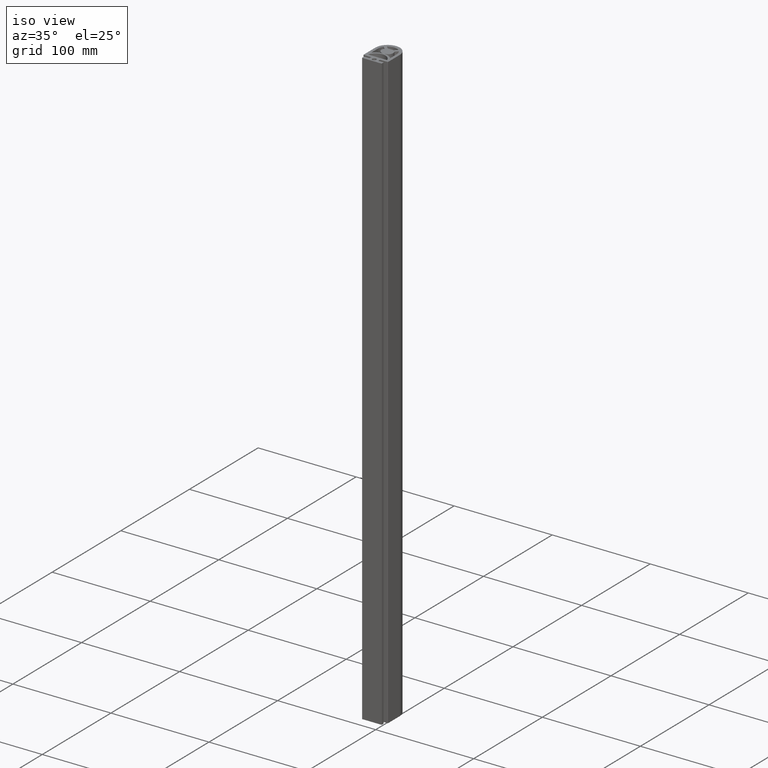
[diagram: clean part render]
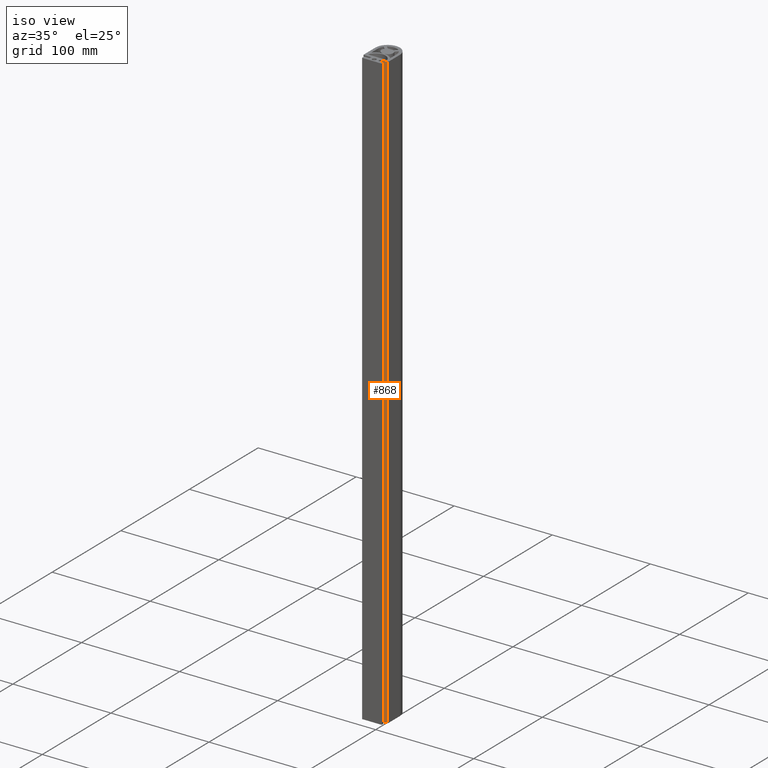
[diagram: same view with one face highlighted and labeled with its STEP entity id]
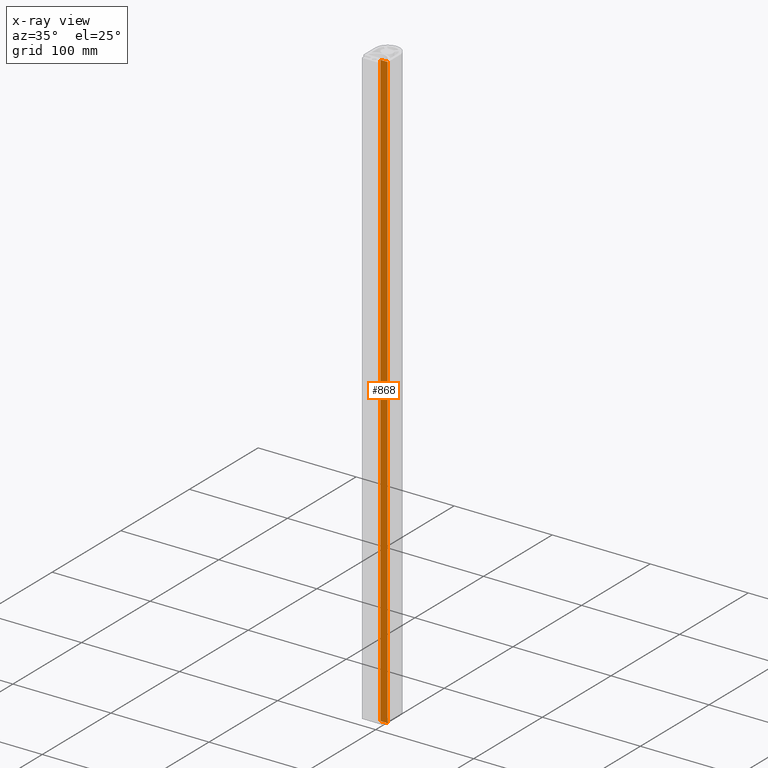
[diagram: x-ray of the same camera — body ghosted, the highlighted face saturated]
A machine part, iso view. The second image highlights one B-rep face of the part: STEP entity #868.
The next image is the same camera in x-ray: the body ghosted, the highlighted face saturated — about 0% of this face is hidden behind the body in this view.
In plain terms, the highlighted planar face has unit normal (0, -1, 0).
Its self-contained STEP definition (entity closure, byte-faithful):
#35 = CARTESIAN_POINT ( 'NONE',  ( 4.700000000156498100, -4.844499801315294000E-009, 509.6000000000000800 ) ) ;
#49 = EDGE_CURVE ( 'NONE', #1236, #1472, #155, .T. ) ;
#52 = LINE ( 'NONE', #1397, #642 ) ;
#79 = VECTOR ( 'NONE', #147, 1000.000000000000000 ) ;
#147 = DIRECTION ( 'NONE',  ( 1.000000000000000000, 0.0000000000000000000, 0.0000000000000000000 ) ) ;
#155 = LINE ( 'NONE', #1256, #669 ) ;
#165 = DIRECTION ( 'NONE',  ( 0.0000000000000000000, -0.0000000000000000000, -1.000000000000000000 ) ) ;
#270 = ORIENTED_EDGE ( 'NONE', *, *, #1542, .T. ) ;
#280 = DIRECTION ( 'NONE',  ( 0.0000000000000000000, -1.000000000000000000, 0.0000000000000000000 ) ) ;
#283 = CARTESIAN_POINT ( 'NONE',  ( 4.700000000156498100, -4.844499503159696600E-009, 509.6000000000000800 ) ) ;
#328 = AXIS2_PLACEMENT_3D ( 'NONE', #774, #280, #165 ) ;
#340 = CARTESIAN_POINT ( 'NONE',  ( 4.700000000156498100, -4.844499801315294000E-009, -99.99999999999997200 ) ) ;
#359 = ORIENTED_EDGE ( 'NONE', *, *, #1480, .F. ) ;
#384 = DIRECTION ( 'NONE',  ( 0.0000000000000000000, 0.0000000000000000000, 1.000000000000000000 ) ) ;
#495 = FACE_OUTER_BOUND ( 'NONE', #1068, .T. ) ;
#571 = LINE ( 'NONE', #283, #79 ) ;
#593 = VERTEX_POINT ( 'NONE', #870 ) ;
#642 = VECTOR ( 'NONE', #1536, 1000.000000000000000 ) ;
#669 = VECTOR ( 'NONE', #384, 1000.000000000000000 ) ;
#774 = CARTESIAN_POINT ( 'NONE',  ( 4.700000000156498100, -4.844499503159696600E-009, -99.99999999999997200 ) ) ;
#866 = DIRECTION ( 'NONE',  ( 1.000000000000000000, 0.0000000000000000000, 0.0000000000000000000 ) ) ;
#868 = ADVANCED_FACE ( 'NONE', ( #495 ), #1520, .T. ) ;
#870 = CARTESIAN_POINT ( 'NONE',  ( 12.29999999871800200, -4.844499503159696600E-009, -99.99999999999997200 ) ) ;
#992 = CARTESIAN_POINT ( 'NONE',  ( 4.700000000156498100, -4.844499503159696600E-009, -99.99999999999997200 ) ) ;
#1068 = EDGE_LOOP ( 'NONE', ( #359, #1146, #1447, #270 ) ) ;
#1146 = ORIENTED_EDGE ( 'NONE', *, *, #49, .F. ) ;
#1236 = VERTEX_POINT ( 'NONE', #340 ) ;
#1256 = CARTESIAN_POINT ( 'NONE',  ( 4.700000000156498100, -4.844499801315294000E-009, -99.99999999999997200 ) ) ;
#1300 = CARTESIAN_POINT ( 'NONE',  ( 12.29999999871800200, -4.844499503159696600E-009, 509.6000000000000800 ) ) ;
#1341 = EDGE_CURVE ( 'NONE', #1236, #593, #1591, .T. ) ;
#1393 = VECTOR ( 'NONE', #866, 1000.000000000000000 ) ;
#1397 = CARTESIAN_POINT ( 'NONE',  ( 12.29999999871800200, -4.844499503159696600E-009, -99.99999999999997200 ) ) ;
#1447 = ORIENTED_EDGE ( 'NONE', *, *, #1341, .T. ) ;
#1472 = VERTEX_POINT ( 'NONE', #35 ) ;
#1480 = EDGE_CURVE ( 'NONE', #1472, #1492, #571, .T. ) ;
#1492 = VERTEX_POINT ( 'NONE', #1300 ) ;
#1520 = PLANE ( 'NONE',  #328 ) ;
#1536 = DIRECTION ( 'NONE',  ( 0.0000000000000000000, 0.0000000000000000000, 1.000000000000000000 ) ) ;
#1542 = EDGE_CURVE ( 'NONE', #593, #1492, #52, .T. ) ;
#1591 = LINE ( 'NONE', #992, #1393 ) ;